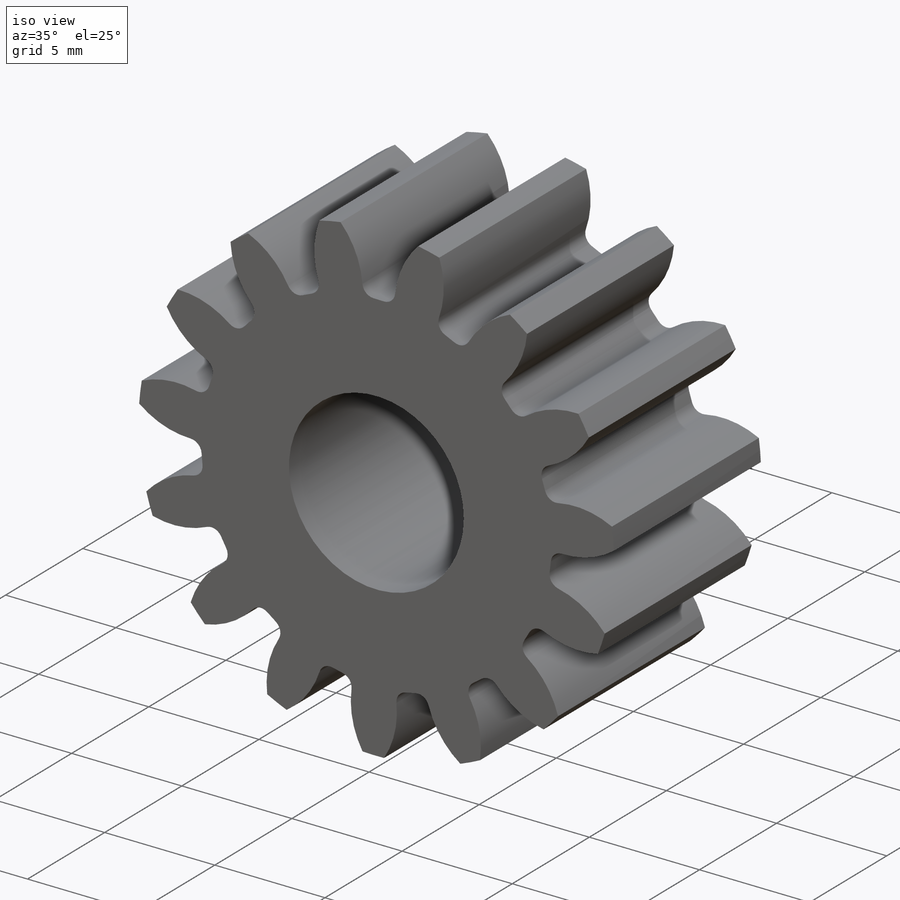
[diagram: iso view]
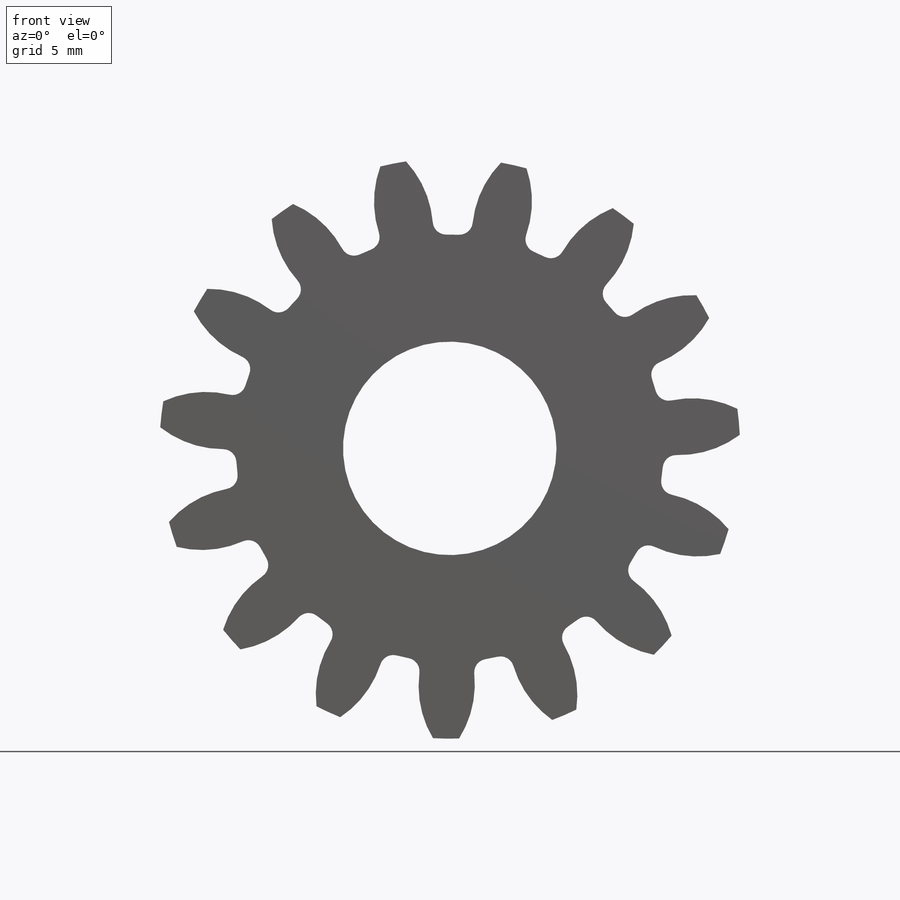
[diagram: front view]
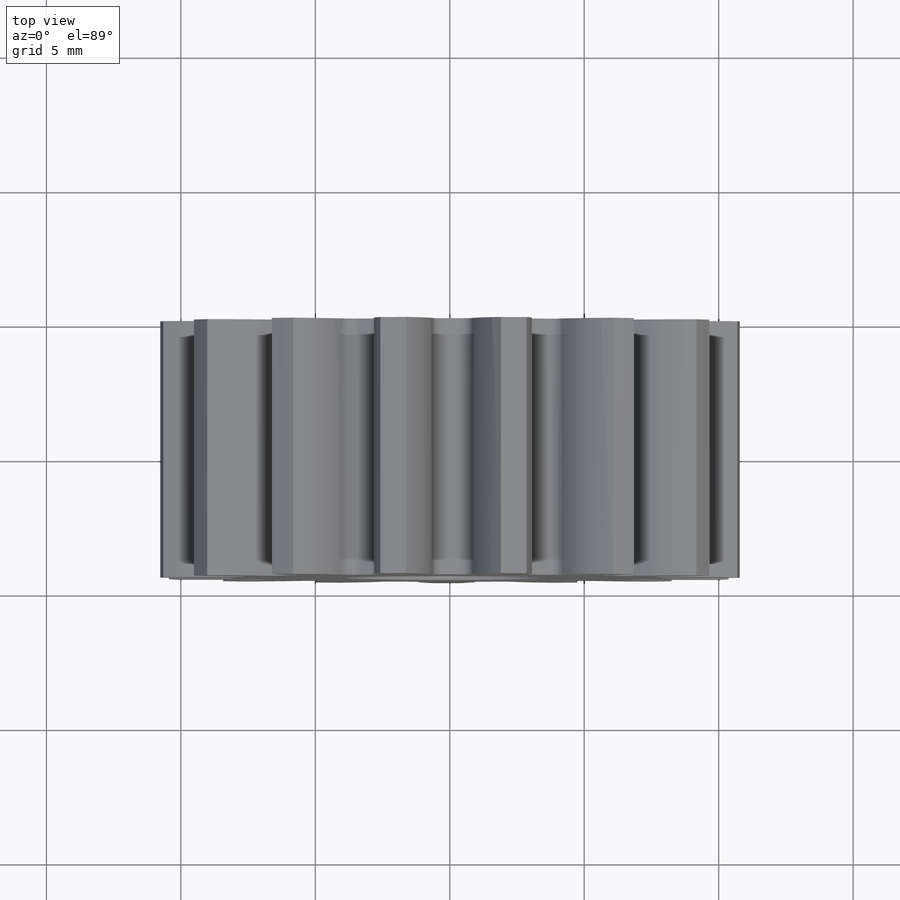
[diagram: top view]
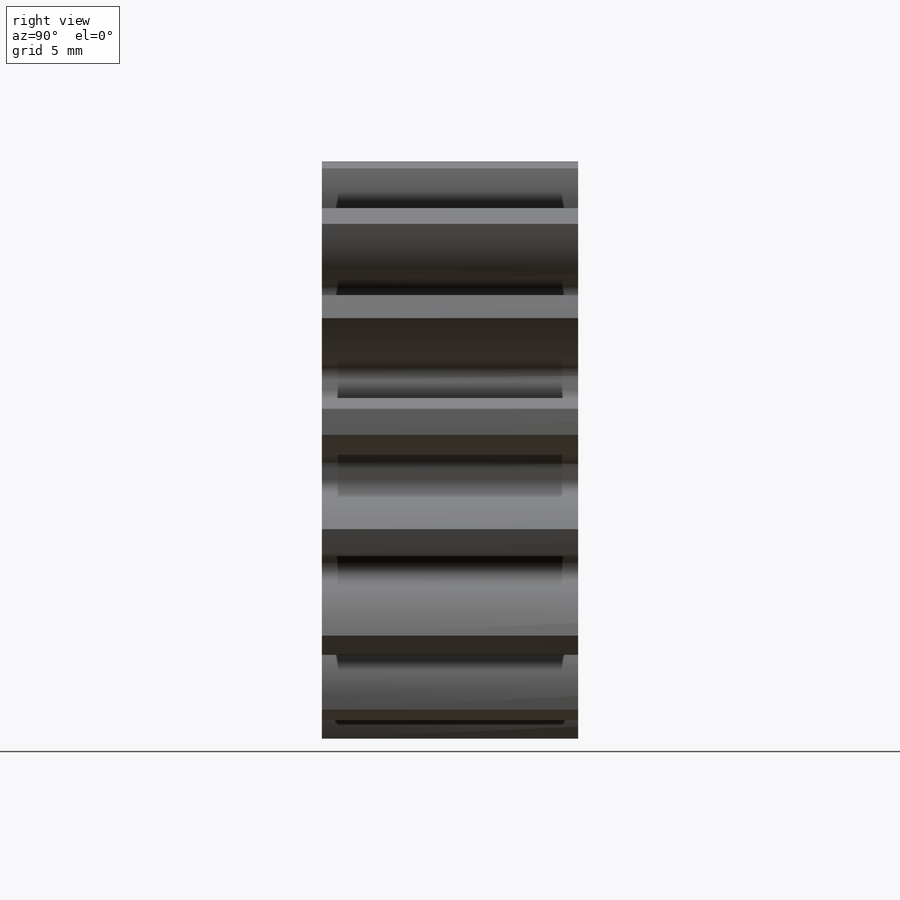
[diagram: right view]
SOLIDWORKS PART (.sldprt)
format: sldprt  version: not decoded by parser v0  size: 800,256 bytes
history: native  units: mm
features: chamfer x6, sketch x5, extrude x3, cut_extrude x2, material x1, pattern_circular x1 + 1 further entry (+12 scaffold rows collapsed)
feature tree (31):
  scaffold x12  (default folders/planes/origin — collapsed)
  material  "Material <not specified>"
  "Design Table"
  sketch  "Sketch3"  dims[od=21.59mm]
  extrude  "gearBody"  Depth=9.525mm face=9.525mm
  sketch  "Sketch2"  dims[c1.baseDia=~18.443213mm c1.od=21.59mm c1.pd=~48.683333mm c1.rd=15.9004mm c1.flankRadius=~9.374682mm c1.toothFlankRadius=~9.374682mm c1.toothFlankRad=~9.75832mm c1.D1=~50.573444mm c1.D2=~25.286722mm c1.overOD=~24.934333mm c2.toothFlankRad=~9.374681mm c2.pd=~23.655867mm c3.pd=19.05mm c3.rFillet=~0.49911mm c3.D1=22.5deg c3.pointX=~11.641975mm c3.pointY=~1.399346mm c4.D1=~21.132529mm c5.D1=~21.132529mm c6.D1=22.5deg c7.D1=~36.314281mm c8.D1=22.5deg c8.CTT=~1.99644mm c9.D1=~29.085143mm c10.D1=~170.928885deg c11.D1=~24.333556mm c12.D1=~23.60856deg c13.D1=~21.132529mm c14.D1=~23.60856deg c15.D1=~21.132529mm c15.flankCenterAngle=22.5deg c16.D1=~9.374681mm c16.toothRad=~9.374681mm c17.D1=~11.901005mm]
  cut_extrude  "toothCut"  [1 undecoded]
  pattern_circular  "CirPattern1"  Count=15 Angle=360deg numTeeth=15
  sketch  "hub1Dia"  dims[hub1Dia=50.8mm]
  extrude  "hub1"  Depth=19.05mm hp1=19.05mm
  sketch  "hub2Dia"  dims[hub2dia=43.688mm]
  extrude  "hub2"  Depth=16.002mm hp2=16.002mm
  sketch  "boreDia"  dims[boreDia=7.9375mm D1=~15.442413mm]
  cut_extrude  "bore"  Depth=25400mm
  chamfer  "hub2Chamfer"  Distance=0.508mm Angle=45deg
  chamfer  "hub2BoreChamfer"  Distance=0.508mm Angle=45deg
  chamfer  "hub1BoreChamfer"  Distance=0.508mm Angle=45deg
  chamfer  "hub1Chamfer"  Distance=0.508mm Angle=45deg
  chamfer  "BoreChamfer2"  Distance=0.508mm Angle=45deg
  chamfer  "boreChamfer1"  Distance=0.508mm Angle=45deg
decode coverage: 16 of 17 modeling features carry decoded parameters; 1 rows unclassified (native names shown)
note: ~ marks probable driven/reference dimensions
note: 1 parameter value undecoded
note: suppression state not decoded; provenance and decode notes live in map.json
